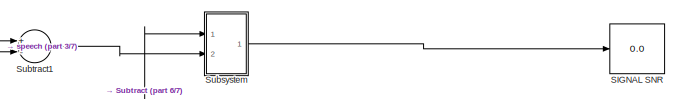
[diagram: root canvas - part 1/7, top right region]
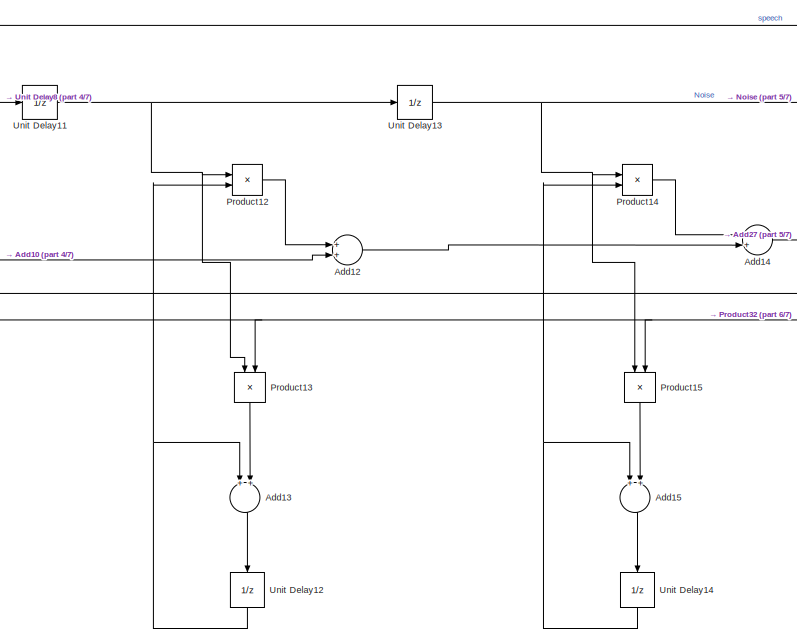
[diagram: root canvas - part 2/7, center side, full height]
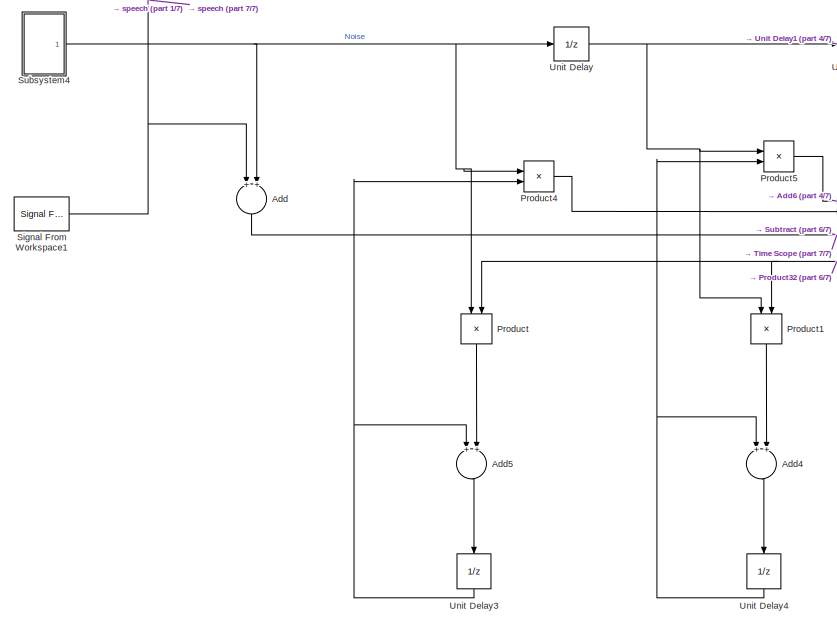
[diagram: root canvas - part 3/7, left side, full height]
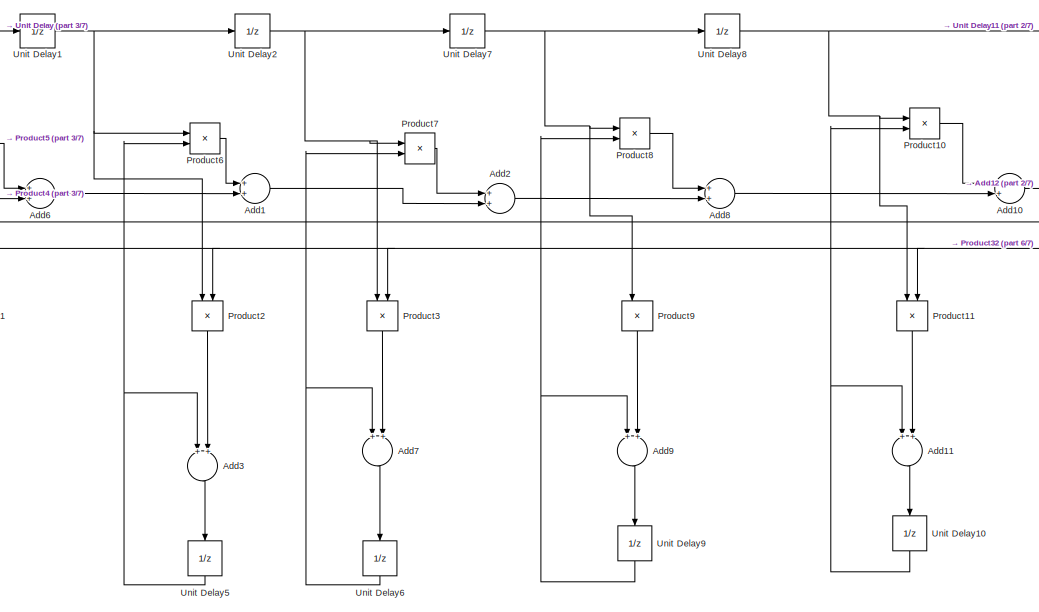
[diagram: root canvas - part 4/7, left side, full height]
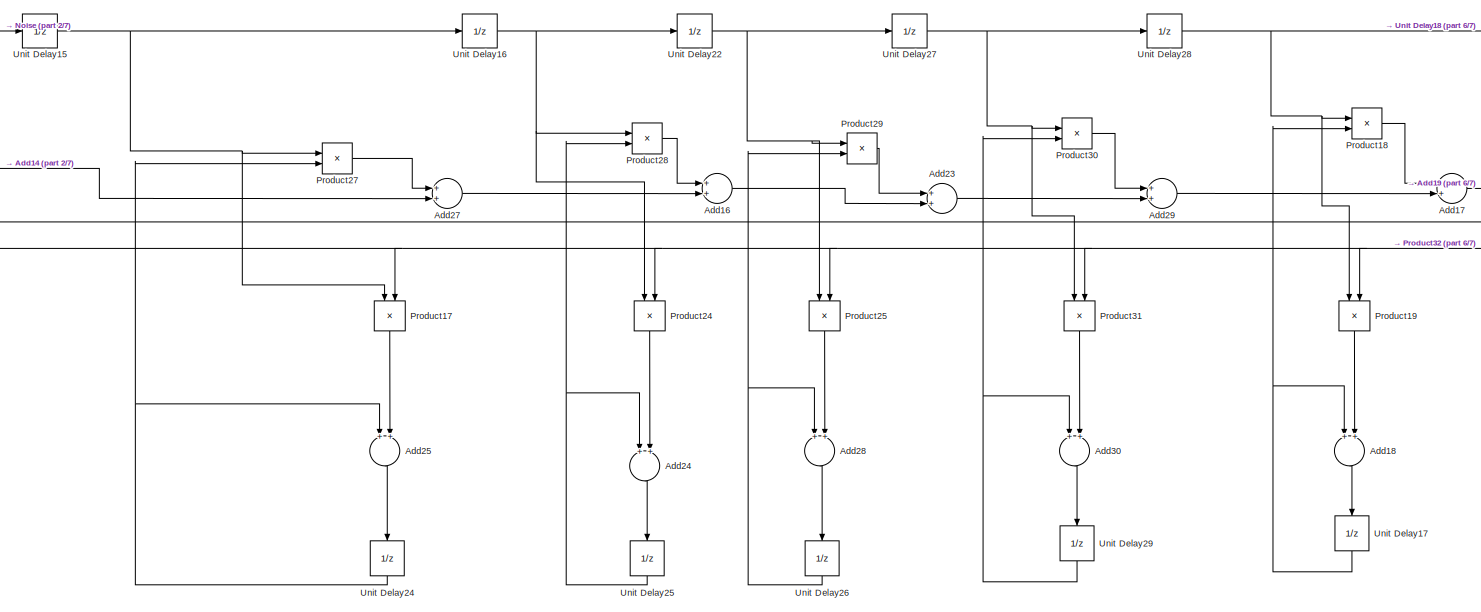
[diagram: root canvas - part 5/7, center side, full height]
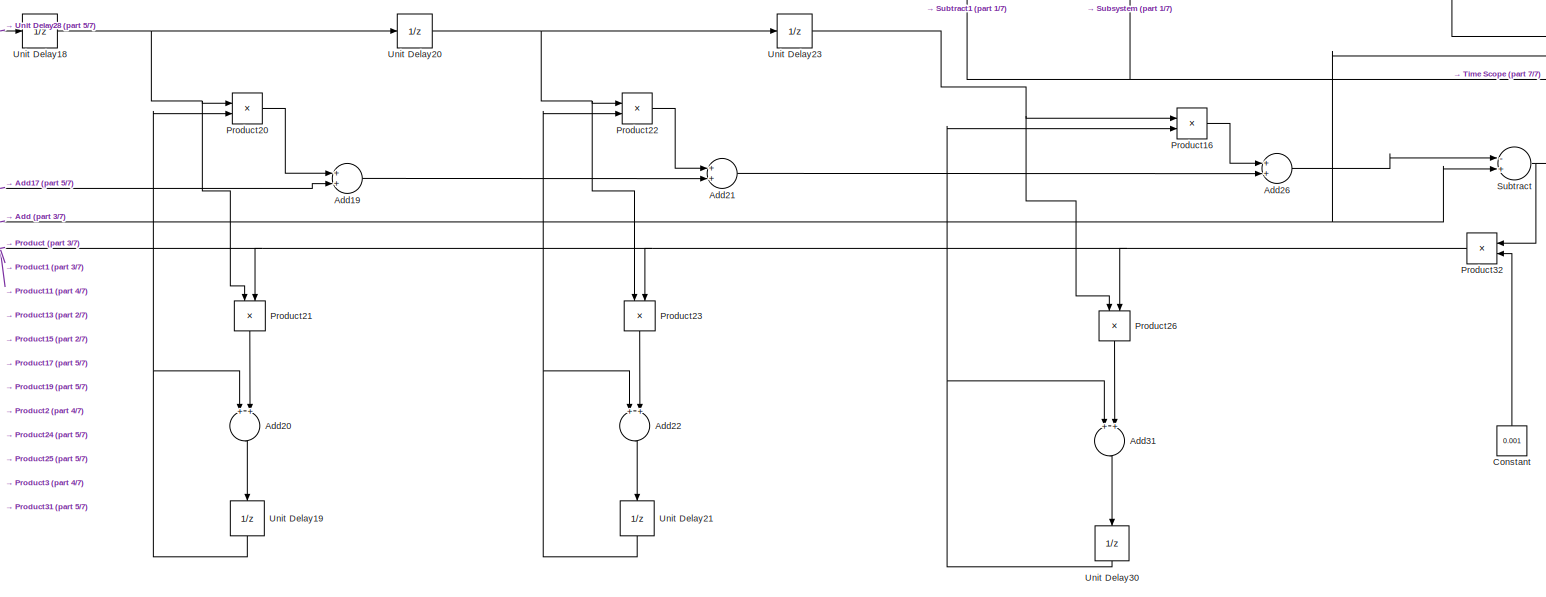
[diagram: root canvas - part 6/7, right side, full height]
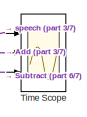
[diagram: root canvas - part 7/7, top right region]
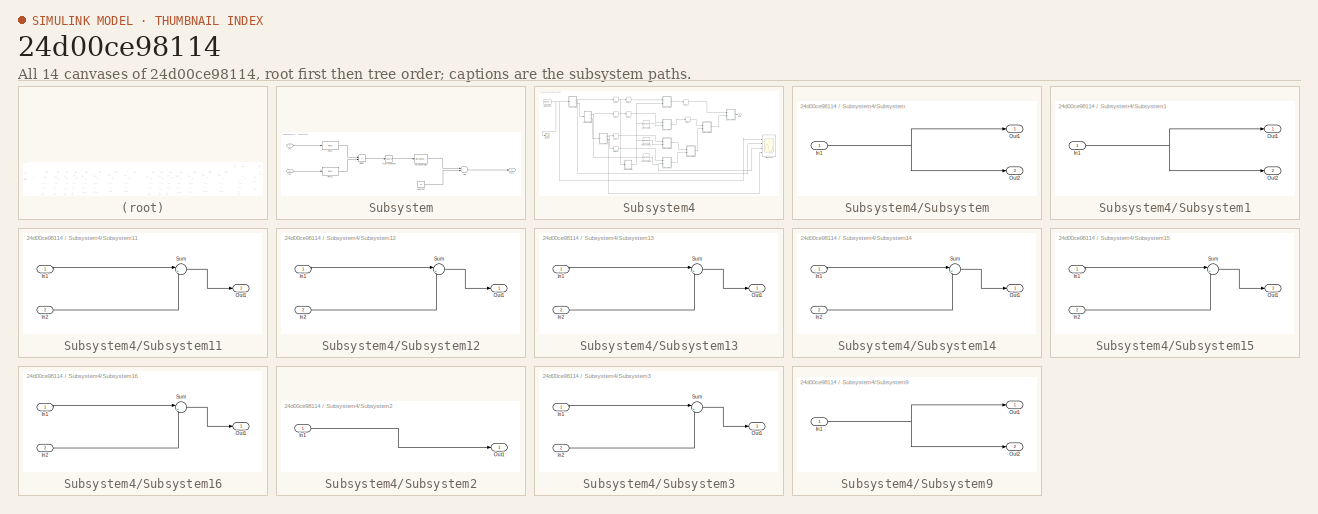
[diagram: thumbnail index - all 14 canvases of the model, root first then tree order]
MODEL slx_24d00ce98114
KIND model
CONFIG AbsTol = auto
CONFIG FixedStep = auto
CONFIG MaxStep = auto
CONFIG MinStep = auto
CONFIG RelTol = 1e-3
CONFIG SampleTimeConstraint = Unconstrained
CONFIG Solver = VariableStepAuto
CONFIG SolverMode = Auto
CONFIG SolverName = VariableStepAuto
CONFIG StartTime = 0.0
CONFIG StopTime = 4000
BLOCK [Sum] Add
  InputSameDT = off
  OutDataTypeStr = Inherit: Inherit via internal rule
  Ports = [2, 1]
  SaturateOnIntegerOverflow = off
BLOCK [Sum] Add1
  InputSameDT = off
  OutDataTypeStr = Inherit: Inherit via internal rule
  Ports = [2, 1]
  SaturateOnIntegerOverflow = off
BLOCK [Sum] Add10
  InputSameDT = off
  OutDataTypeStr = Inherit: Inherit via internal rule
  Ports = [2, 1]
  SaturateOnIntegerOverflow = off
BLOCK [Sum] Add11
  InputSameDT = off
  OutDataTypeStr = Inherit: Inherit via internal rule
  Ports = [2, 1]
  SaturateOnIntegerOverflow = off
BLOCK [Sum] Add12
  InputSameDT = off
  OutDataTypeStr = Inherit: Inherit via internal rule
  Ports = [2, 1]
  SaturateOnIntegerOverflow = off
BLOCK [Sum] Add13
  InputSameDT = off
  OutDataTypeStr = Inherit: Inherit via internal rule
  Ports = [2, 1]
  SaturateOnIntegerOverflow = off
BLOCK [Sum] Add14
  InputSameDT = off
  OutDataTypeStr = Inherit: Inherit via internal rule
  Ports = [2, 1]
  SaturateOnIntegerOverflow = off
BLOCK [Sum] Add15
  InputSameDT = off
  OutDataTypeStr = Inherit: Inherit via internal rule
  Ports = [2, 1]
  SaturateOnIntegerOverflow = off
BLOCK [Sum] Add16
  InputSameDT = off
  OutDataTypeStr = Inherit: Inherit via internal rule
  Ports = [2, 1]
  SaturateOnIntegerOverflow = off
BLOCK [Sum] Add17
  InputSameDT = off
  OutDataTypeStr = Inherit: Inherit via internal rule
  Ports = [2, 1]
  SaturateOnIntegerOverflow = off
BLOCK [Sum] Add18
  InputSameDT = off
  OutDataTypeStr = Inherit: Inherit via internal rule
  Ports = [2, 1]
  SaturateOnIntegerOverflow = off
BLOCK [Sum] Add19
  InputSameDT = off
  OutDataTypeStr = Inherit: Inherit via internal rule
  Ports = [2, 1]
  SaturateOnIntegerOverflow = off
BLOCK [Sum] Add2
  InputSameDT = off
  OutDataTypeStr = Inherit: Inherit via internal rule
  Ports = [2, 1]
  SaturateOnIntegerOverflow = off
BLOCK [Sum] Add20
  InputSameDT = off
  OutDataTypeStr = Inherit: Inherit via internal rule
  Ports = [2, 1]
  SaturateOnIntegerOverflow = off
BLOCK [Sum] Add21
  InputSameDT = off
  OutDataTypeStr = Inherit: Inherit via internal rule
  Ports = [2, 1]
  SaturateOnIntegerOverflow = off
BLOCK [Sum] Add22
  InputSameDT = off
  OutDataTypeStr = Inherit: Inherit via internal rule
  Ports = [2, 1]
  SaturateOnIntegerOverflow = off
BLOCK [Sum] Add23
  InputSameDT = off
  OutDataTypeStr = Inherit: Inherit via internal rule
  Ports = [2, 1]
  SaturateOnIntegerOverflow = off
BLOCK [Sum] Add24
  InputSameDT = off
  OutDataTypeStr = Inherit: Inherit via internal rule
  Ports = [2, 1]
  SaturateOnIntegerOverflow = off
BLOCK [Sum] Add25
  InputSameDT = off
  OutDataTypeStr = Inherit: Inherit via internal rule
  Ports = [2, 1]
  SaturateOnIntegerOverflow = off
BLOCK [Sum] Add26
  InputSameDT = off
  OutDataTypeStr = Inherit: Inherit via internal rule
  Ports = [2, 1]
  SaturateOnIntegerOverflow = off
BLOCK [Sum] Add27
  InputSameDT = off
  OutDataTypeStr = Inherit: Inherit via internal rule
  Ports = [2, 1]
  SaturateOnIntegerOverflow = off
BLOCK [Sum] Add28
  InputSameDT = off
  OutDataTypeStr = Inherit: Inherit via internal rule
  Ports = [2, 1]
  SaturateOnIntegerOverflow = off
BLOCK [Sum] Add29
  InputSameDT = off
  OutDataTypeStr = Inherit: Inherit via internal rule
  Ports = [2, 1]
  SaturateOnIntegerOverflow = off
BLOCK [Sum] Add3
  InputSameDT = off
  OutDataTypeStr = Inherit: Inherit via internal rule
  Ports = [2, 1]
  SaturateOnIntegerOverflow = off
BLOCK [Sum] Add30
  InputSameDT = off
  OutDataTypeStr = Inherit: Inherit via internal rule
  Ports = [2, 1]
  SaturateOnIntegerOverflow = off
BLOCK [Sum] Add31
  InputSameDT = off
  OutDataTypeStr = Inherit: Inherit via internal rule
  Ports = [2, 1]
  SaturateOnIntegerOverflow = off
BLOCK [Sum] Add4
  InputSameDT = off
  OutDataTypeStr = Inherit: Inherit via internal rule
  Ports = [2, 1]
  SaturateOnIntegerOverflow = off
BLOCK [Sum] Add5
  InputSameDT = off
  OutDataTypeStr = Inherit: Inherit via internal rule
  Ports = [2, 1]
  SaturateOnIntegerOverflow = off
BLOCK [Sum] Add6
  InputSameDT = off
  OutDataTypeStr = Inherit: Inherit via internal rule
  Ports = [2, 1]
  SaturateOnIntegerOverflow = off
BLOCK [Sum] Add7
  InputSameDT = off
  OutDataTypeStr = Inherit: Inherit via internal rule
  Ports = [2, 1]
  SaturateOnIntegerOverflow = off
BLOCK [Sum] Add8
  InputSameDT = off
  OutDataTypeStr = Inherit: Inherit via internal rule
  Ports = [2, 1]
  SaturateOnIntegerOverflow = off
BLOCK [Sum] Add9
  InputSameDT = off
  OutDataTypeStr = Inherit: Inherit via internal rule
  Ports = [2, 1]
  SaturateOnIntegerOverflow = off
BLOCK [Constant] Constant
  Value = 0.001
BLOCK [Product] Product
  InputSameDT = off
  OutDataTypeStr = Inherit: Inherit via internal rule
  Ports = [2, 1]
  RndMeth = Floor
  SaturateOnIntegerOverflow = off
BLOCK [Product] Product1
  InputSameDT = off
  OutDataTypeStr = Inherit: Inherit via internal rule
  Ports = [2, 1]
  RndMeth = Floor
  SaturateOnIntegerOverflow = off
BLOCK [Product] Product10
  InputSameDT = off
  OutDataTypeStr = Inherit: Inherit via internal rule
  Ports = [2, 1]
  RndMeth = Floor
  SaturateOnIntegerOverflow = off
BLOCK [Product] Product11
  InputSameDT = off
  OutDataTypeStr = Inherit: Inherit via internal rule
  Ports = [2, 1]
  RndMeth = Floor
  SaturateOnIntegerOverflow = off
BLOCK [Product] Product12
  InputSameDT = off
  OutDataTypeStr = Inherit: Inherit via internal rule
  Ports = [2, 1]
  RndMeth = Floor
  SaturateOnIntegerOverflow = off
BLOCK [Product] Product13
  InputSameDT = off
  OutDataTypeStr = Inherit: Inherit via internal rule
  Ports = [2, 1]
  RndMeth = Floor
  SaturateOnIntegerOverflow = off
BLOCK [Product] Product14
  InputSameDT = off
  OutDataTypeStr = Inherit: Inherit via internal rule
  Ports = [2, 1]
  RndMeth = Floor
  SaturateOnIntegerOverflow = off
BLOCK [Product] Product15
  InputSameDT = off
  OutDataTypeStr = Inherit: Inherit via internal rule
  Ports = [2, 1]
  RndMeth = Floor
  SaturateOnIntegerOverflow = off
BLOCK [Product] Product16
  InputSameDT = off
  OutDataTypeStr = Inherit: Inherit via internal rule
  Ports = [2, 1]
  RndMeth = Floor
  SaturateOnIntegerOverflow = off
BLOCK [Product] Product17
  InputSameDT = off
  OutDataTypeStr = Inherit: Inherit via internal rule
  Ports = [2, 1]
  RndMeth = Floor
  SaturateOnIntegerOverflow = off
BLOCK [Product] Product18
  InputSameDT = off
  OutDataTypeStr = Inherit: Inherit via internal rule
  Ports = [2, 1]
  RndMeth = Floor
  SaturateOnIntegerOverflow = off
BLOCK [Product] Product19
  InputSameDT = off
  OutDataTypeStr = Inherit: Inherit via internal rule
  Ports = [2, 1]
  RndMeth = Floor
  SaturateOnIntegerOverflow = off
BLOCK [Product] Product2
  InputSameDT = off
  OutDataTypeStr = Inherit: Inherit via internal rule
  Ports = [2, 1]
  RndMeth = Floor
  SaturateOnIntegerOverflow = off
BLOCK [Product] Product20
  InputSameDT = off
  OutDataTypeStr = Inherit: Inherit via internal rule
  Ports = [2, 1]
  RndMeth = Floor
  SaturateOnIntegerOverflow = off
BLOCK [Product] Product21
  InputSameDT = off
  OutDataTypeStr = Inherit: Inherit via internal rule
  Ports = [2, 1]
  RndMeth = Floor
  SaturateOnIntegerOverflow = off
BLOCK [Product] Product22
  InputSameDT = off
  OutDataTypeStr = Inherit: Inherit via internal rule
  Ports = [2, 1]
  RndMeth = Floor
  SaturateOnIntegerOverflow = off
BLOCK [Product] Product23
  InputSameDT = off
  OutDataTypeStr = Inherit: Inherit via internal rule
  Ports = [2, 1]
  RndMeth = Floor
  SaturateOnIntegerOverflow = off
BLOCK [Product] Product24
  InputSameDT = off
  OutDataTypeStr = Inherit: Inherit via internal rule
  Ports = [2, 1]
  RndMeth = Floor
  SaturateOnIntegerOverflow = off
BLOCK [Product] Product25
  InputSameDT = off
  OutDataTypeStr = Inherit: Inherit via internal rule
  Ports = [2, 1]
  RndMeth = Floor
  SaturateOnIntegerOverflow = off
BLOCK [Product] Product26
  InputSameDT = off
  OutDataTypeStr = Inherit: Inherit via internal rule
  Ports = [2, 1]
  RndMeth = Floor
  SaturateOnIntegerOverflow = off
BLOCK [Product] Product27
  InputSameDT = off
  OutDataTypeStr = Inherit: Inherit via internal rule
  Ports = [2, 1]
  RndMeth = Floor
  SaturateOnIntegerOverflow = off
BLOCK [Product] Product28
  InputSameDT = off
  OutDataTypeStr = Inherit: Inherit via internal rule
  Ports = [2, 1]
  RndMeth = Floor
  SaturateOnIntegerOverflow = off
BLOCK [Product] Product29
  InputSameDT = off
  OutDataTypeStr = Inherit: Inherit via internal rule
  Ports = [2, 1]
  RndMeth = Floor
  SaturateOnIntegerOverflow = off
BLOCK [Product] Product3
  InputSameDT = off
  OutDataTypeStr = Inherit: Inherit via internal rule
  Ports = [2, 1]
  RndMeth = Floor
  SaturateOnIntegerOverflow = off
BLOCK [Product] Product30
  InputSameDT = off
  OutDataTypeStr = Inherit: Inherit via internal rule
  Ports = [2, 1]
  RndMeth = Floor
  SaturateOnIntegerOverflow = off
BLOCK [Product] Product31
  InputSameDT = off
  OutDataTypeStr = Inherit: Inherit via internal rule
  Ports = [2, 1]
  RndMeth = Floor
  SaturateOnIntegerOverflow = off
BLOCK [Product] Product32
  InputSameDT = off
  OutDataTypeStr = Inherit: Inherit via internal rule
  Ports = [2, 1]
  RndMeth = Floor
  SaturateOnIntegerOverflow = off
BLOCK [Product] Product4
  InputSameDT = off
  OutDataTypeStr = Inherit: Inherit via internal rule
  Ports = [2, 1]
  RndMeth = Floor
  SaturateOnIntegerOverflow = off
BLOCK [Product] Product5
  InputSameDT = off
  OutDataTypeStr = Inherit: Inherit via internal rule
  Ports = [2, 1]
  RndMeth = Floor
  SaturateOnIntegerOverflow = off
BLOCK [Product] Product6
  InputSameDT = off
  OutDataTypeStr = Inherit: Inherit via internal rule
  Ports = [2, 1]
  RndMeth = Floor
  SaturateOnIntegerOverflow = off
BLOCK [Product] Product7
  InputSameDT = off
  OutDataTypeStr = Inherit: Inherit via internal rule
  Ports = [2, 1]
  RndMeth = Floor
  SaturateOnIntegerOverflow = off
BLOCK [Product] Product8
  InputSameDT = off
  OutDataTypeStr = Inherit: Inherit via internal rule
  Ports = [2, 1]
  RndMeth = Floor
  SaturateOnIntegerOverflow = off
BLOCK [Product] Product9
  InputSameDT = off
  OutDataTypeStr = Inherit: Inherit via internal rule
  Ports = [2, 1]
  RndMeth = Floor
  SaturateOnIntegerOverflow = off
BLOCK [Display] SIGNAL SNR 
  Decimation = 1
  Ports = [1]
BLOCK [Reference] Signal From Workspace1  REF=dspsrcs4/Signal From
Workspace
  Ports = [0, 1]
  SourceBlock = dspsrcs4/Signal From\nWorkspace
  SourceType = Signal From Workspace
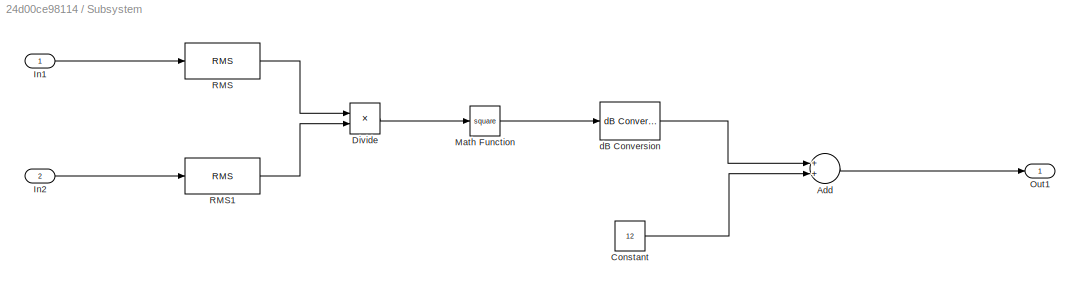
BLOCK [SubSystem] Subsystem
  Ports = [2, 1]
  RequestExecContextInheritance = off
  Variant = off
BLOCK [Sum] Subsystem/Add
  InputSameDT = off
  OutDataTypeStr = Inherit: Inherit via internal rule
  Ports = [2, 1]
  SaturateOnIntegerOverflow = off
BLOCK [Constant] Subsystem/Constant
  Value = 12
BLOCK [Product] Subsystem/Divide
  InputSameDT = off
  Inputs = */
  OutDataTypeStr = Inherit: Inherit via internal rule
  Ports = [2, 1]
  RndMeth = Floor
  SaturateOnIntegerOverflow = off
BLOCK [Inport] Subsystem/In1
  IconDisplay = Port number
  VarSizeSig = No
BLOCK [Inport] Subsystem/In2
  IconDisplay = Port number
  Port = 2
BLOCK [Math] Subsystem/Math Function
  Operator = square
  OutputSignalType = real
  Ports = [1, 1]
BLOCK [Outport] Subsystem/Out1
  IconDisplay = Port number
BLOCK [Reference] Subsystem/RMS  REF=dspstat3/RMS
  Ports = [1, 1]
  SourceBlock = dspstat3/RMS
  SourceType = RMS
  UserDataPersistent = on
BLOCK [Reference] Subsystem/RMS1  REF=dspstat3/RMS
  Ports = [1, 1]
  SourceBlock = dspstat3/RMS
  SourceType = RMS
  UserDataPersistent = on
BLOCK [Reference] Subsystem/dB Conversion  REF=dspmathops/dB Conversion
  Ports = [1, 1]
  SourceBlock = dspmathops/dB Conversion
  SourceType = dB Conversion
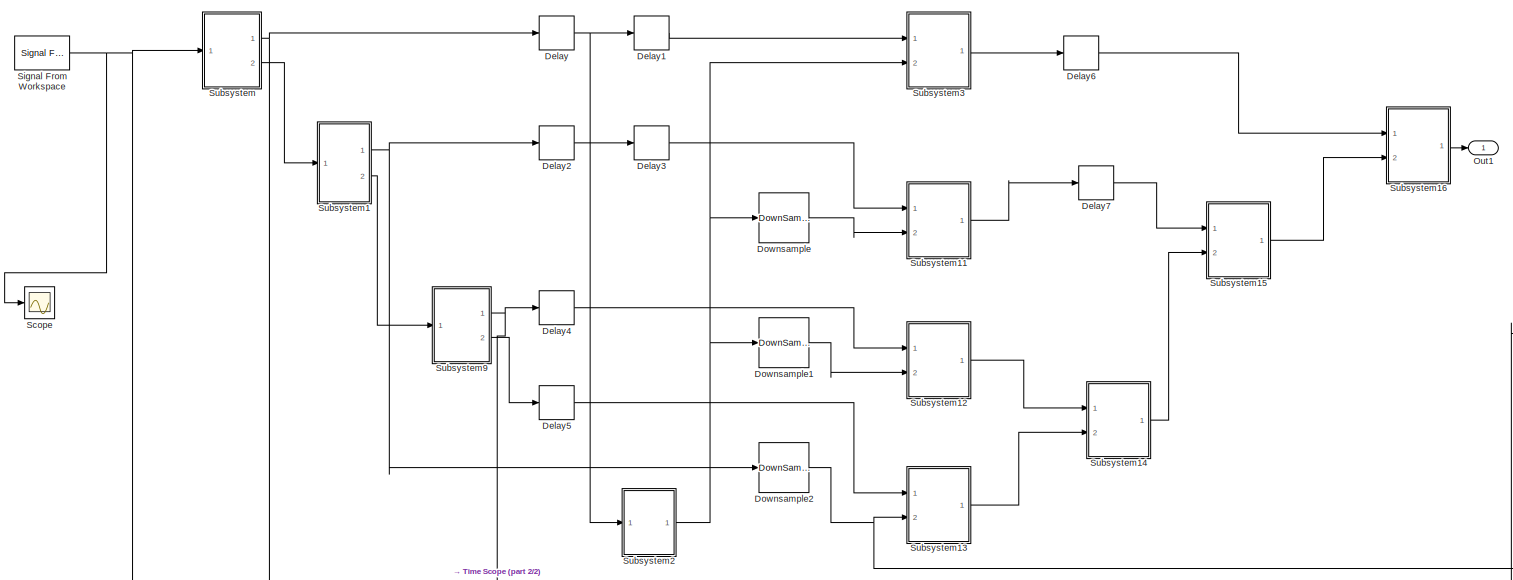
[diagram: Subsystem4 - part 1/2, most of the canvas]
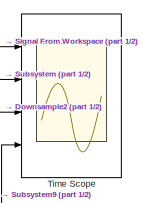
[diagram: Subsystem4 - part 2/2, middle right region]
BLOCK [SubSystem] Subsystem4
  Ports = [0, 1]
  RequestExecContextInheritance = off
  Variant = off
BLOCK [Delay] Subsystem4/Delay
  DelayLength = 24
  InitialCondition = 0
  InputPortMap = u0
  Ports = [1, 1]
BLOCK [Delay] Subsystem4/Delay1
  DelayLength = 16
  InitialCondition = 0
  InputPortMap = u0
  Ports = [1, 1]
BLOCK [Delay] Subsystem4/Delay2
  DelayLength = 8
  InitialCondition = 0
  InputPortMap = u0
  Ports = [1, 1]
BLOCK [Delay] Subsystem4/Delay3
  DelayLength = 8
  InitialCondition = 0
  InputPortMap = u0
  Ports = [1, 1]
BLOCK [Delay] Subsystem4/Delay4
  DelayLength = 4
  InitialCondition = 0
  InputPortMap = u0
  Ports = [1, 1]
BLOCK [Delay] Subsystem4/Delay5
  DelayLength = 4
  InitialCondition = 0
  InputPortMap = u0
  Ports = [1, 1]
BLOCK [Delay] Subsystem4/Delay6
  DelayLength = 24
  InitialCondition = 0
  InputPortMap = u0
  Ports = [1, 1]
BLOCK [Delay] Subsystem4/Delay7
  DelayLength = 8
  InitialCondition = 0
  InputPortMap = u0
  Ports = [1, 1]
BLOCK [DownSample] Subsystem4/Downsample
  InputProcessing = Elements as channels (sample based)
  RateOptions = Allow multirate processing
  ic = -1
BLOCK [DownSample] Subsystem4/Downsample1
  InputProcessing = Elements as channels (sample based)
  N = 4
  RateOptions = Allow multirate processing
  ic = -1
BLOCK [DownSample] Subsystem4/Downsample2
  InputProcessing = Elements as channels (sample based)
  N = 8
  ic = -1
  phase = 1
BLOCK [Outport] Subsystem4/Out1
  IconDisplay = Port number
BLOCK [Scope] Subsystem4/Scope
  Ports = [1]
  ScopeSpecificationString = Simulink.scopes.TimeScopeBlockCfg('CurrentConfiguration', extmgr.ConfigurationSet(extmgr.Configuration('Core','General UI',true),extmgr.Configuration('Core','Source UI',true),extmgr.Configuration('Sources','WiredSimulink',true,'DataLoggingLimitDataPoints',true,'DataLoggingSaveFormat','Array','DataLoggingDecimation','1','DataLoggingDecimateData',true),extmgr.Configuration('Visuals','Time Domain',tr...<+1493ch>
BLOCK [Reference] Subsystem4/Signal From Workspace  REF=dspsrcs4/Signal From
Workspace
  Ports = [0, 1]
  SourceBlock = dspsrcs4/Signal From\nWorkspace
  SourceType = Signal From Workspace
BLOCK [SubSystem] Subsystem4/Subsystem
  Ports = [1, 2]
  RequestExecContextInheritance = off
  Variant = off
BLOCK [Inport] Subsystem4/Subsystem/In1
  IconDisplay = Port number
BLOCK [Outport] Subsystem4/Subsystem/Out1
  IconDisplay = Port number
BLOCK [Outport] Subsystem4/Subsystem/Out2
  IconDisplay = Port number
  Port = 2
BLOCK [SubSystem] Subsystem4/Subsystem1
  Ports = [1, 2]
  RequestExecContextInheritance = off
  Variant = off
BLOCK [Inport] Subsystem4/Subsystem1/In1
  IconDisplay = Port number
BLOCK [Outport] Subsystem4/Subsystem1/Out1
  IconDisplay = Port number
BLOCK [Outport] Subsystem4/Subsystem1/Out2
  IconDisplay = Port number
  Port = 2
BLOCK [SubSystem] Subsystem4/Subsystem11
  Ports = [2, 1]
  RequestExecContextInheritance = off
  Variant = off
BLOCK [Inport] Subsystem4/Subsystem11/In1
  IconDisplay = Port number
BLOCK [Inport] Subsystem4/Subsystem11/In2
  IconDisplay = Port number
  Port = 2
BLOCK [Outport] Subsystem4/Subsystem11/Out1
  IconDisplay = Port number
BLOCK [Sum] Subsystem4/Subsystem11/Sum
  IconShape = round
  InputSameDT = off
  Inputs = |++
  OutDataTypeStr = Inherit: Inherit via internal rule
  Ports = [2, 1]
  SaturateOnIntegerOverflow = off
BLOCK [SubSystem] Subsystem4/Subsystem12
  Ports = [2, 1]
  RequestExecContextInheritance = off
  Variant = off
BLOCK [Inport] Subsystem4/Subsystem12/In1
  IconDisplay = Port number
BLOCK [Inport] Subsystem4/Subsystem12/In2
  IconDisplay = Port number
  Port = 2
BLOCK [Outport] Subsystem4/Subsystem12/Out1
  IconDisplay = Port number
BLOCK [Sum] Subsystem4/Subsystem12/Sum
  IconShape = round
  InputSameDT = off
  Inputs = |++
  OutDataTypeStr = Inherit: Inherit via internal rule
  Ports = [2, 1]
  SaturateOnIntegerOverflow = off
BLOCK [SubSystem] Subsystem4/Subsystem13
  Ports = [2, 1]
  RequestExecContextInheritance = off
  Variant = off
BLOCK [Inport] Subsystem4/Subsystem13/In1
  IconDisplay = Port number
BLOCK [Inport] Subsystem4/Subsystem13/In2
  IconDisplay = Port number
  Port = 2
BLOCK [Outport] Subsystem4/Subsystem13/Out1
  IconDisplay = Port number
BLOCK [Sum] Subsystem4/Subsystem13/Sum
  IconShape = round
  InputSameDT = off
  Inputs = |++
  OutDataTypeStr = Inherit: Inherit via internal rule
  Ports = [2, 1]
  SaturateOnIntegerOverflow = off
BLOCK [SubSystem] Subsystem4/Subsystem14
  Ports = [2, 1]
  RequestExecContextInheritance = off
  Variant = off
BLOCK [Inport] Subsystem4/Subsystem14/In1
  IconDisplay = Port number
BLOCK [Inport] Subsystem4/Subsystem14/In2
  IconDisplay = Port number
  Port = 2
BLOCK [Outport] Subsystem4/Subsystem14/Out1
  IconDisplay = Port number
BLOCK [Sum] Subsystem4/Subsystem14/Sum
  IconShape = round
  InputSameDT = off
  Inputs = |++
  OutDataTypeStr = Inherit: Inherit via internal rule
  Ports = [2, 1]
  SaturateOnIntegerOverflow = off
BLOCK [SubSystem] Subsystem4/Subsystem15
  Ports = [2, 1]
  RequestExecContextInheritance = off
  Variant = off
BLOCK [Inport] Subsystem4/Subsystem15/In1
  IconDisplay = Port number
BLOCK [Inport] Subsystem4/Subsystem15/In2
  IconDisplay = Port number
  Port = 2
BLOCK [Outport] Subsystem4/Subsystem15/Out1
  IconDisplay = Port number
BLOCK [Sum] Subsystem4/Subsystem15/Sum
  IconShape = round
  InputSameDT = off
  Inputs = |++
  OutDataTypeStr = Inherit: Inherit via internal rule
  Ports = [2, 1]
  SaturateOnIntegerOverflow = off
BLOCK [SubSystem] Subsystem4/Subsystem16
  Ports = [2, 1]
  RequestExecContextInheritance = off
  Variant = off
BLOCK [Inport] Subsystem4/Subsystem16/In1
  IconDisplay = Port number
BLOCK [Inport] Subsystem4/Subsystem16/In2
  IconDisplay = Port number
  Port = 2
BLOCK [Outport] Subsystem4/Subsystem16/Out1
  IconDisplay = Port number
BLOCK [Sum] Subsystem4/Subsystem16/Sum
  IconShape = round
  InputSameDT = off
  Inputs = |++
  OutDataTypeStr = Inherit: Inherit via internal rule
  Ports = [2, 1]
  SaturateOnIntegerOverflow = off
BLOCK [SubSystem] Subsystem4/Subsystem2
  Ports = [1, 1]
  RequestExecContextInheritance = off
  Variant = off
BLOCK [Inport] Subsystem4/Subsystem2/In1
  IconDisplay = Port number
BLOCK [Outport] Subsystem4/Subsystem2/Out1
  IconDisplay = Port number
BLOCK [SubSystem] Subsystem4/Subsystem3
  Ports = [2, 1]
  RequestExecContextInheritance = off
  Variant = off
BLOCK [Inport] Subsystem4/Subsystem3/In1
  IconDisplay = Port number
BLOCK [Inport] Subsystem4/Subsystem3/In2
  IconDisplay = Port number
  Port = 2
BLOCK [Outport] Subsystem4/Subsystem3/Out1
  IconDisplay = Port number
BLOCK [Sum] Subsystem4/Subsystem3/Sum
  IconShape = round
  InputSameDT = off
  Inputs = |++
  OutDataTypeStr = Inherit: Inherit via internal rule
  Ports = [2, 1]
  SaturateOnIntegerOverflow = off
BLOCK [SubSystem] Subsystem4/Subsystem9
  Ports = [1, 2]
  RequestExecContextInheritance = off
  Variant = off
BLOCK [Inport] Subsystem4/Subsystem9/In1
  IconDisplay = Port number
BLOCK [Outport] Subsystem4/Subsystem9/Out1
  IconDisplay = Port number
BLOCK [Outport] Subsystem4/Subsystem9/Out2
  IconDisplay = Port number
  Port = 2
BLOCK [Scope] Subsystem4/Time Scope
  DefaultConfigurationName = spbscopes.TimeScopeBlockCfg
  NumInputPorts = 4
  Ports = [4]
  ScopeSpecificationString = spbscopes.TimeScopeBlockCfg('CurrentConfiguration', extmgr.ConfigurationSet(extmgr.Configuration('Core','General UI',true),extmgr.Configuration('Core','Source UI',true),extmgr.Configuration('Sources','WiredSimulink',true,'DataLoggingVariableName','ScopeData1','DataLoggingLimitDataPoints',true,'DataLoggingSaveFormat','Array','DataLoggingDecimation','1','DataLoggingDecimateData',true),extmgr.Configu...<+3606ch>
  UserDataPersistent = on
BLOCK [Sum] Subtract
  InputSameDT = off
  Inputs = -+
  OutDataTypeStr = Inherit: Inherit via internal rule
  Ports = [2, 1]
  SaturateOnIntegerOverflow = off
BLOCK [Sum] Subtract1
  InputSameDT = off
  Inputs = +-
  OutDataTypeStr = Inherit: Inherit via internal rule
  Ports = [2, 1]
  SaturateOnIntegerOverflow = off
BLOCK [Scope] Time Scope
  DefaultConfigurationName = spbscopes.TimeScopeBlockCfg
  NumInputPorts = 3
  Ports = [3]
  ScopeSpecificationString = spbscopes.TimeScopeBlockCfg('CurrentConfiguration', extmgr.ConfigurationSet(extmgr.Configuration('Core','General UI',true),extmgr.Configuration('Core','Source UI',true),extmgr.Configuration('Sources','WiredSimulink',true),extmgr.Configuration('Visuals','Time Domain',true,'DisplayLayoutDimensions',[3 1],'DisplayPropertyDefaults',struct('YLabelReal','Amplitude','LegendVisibility','off','XGrid',true,...<+2715ch>
  UserDataPersistent = on
BLOCK [UnitDelay] Unit Delay
  InputProcessing = Elements as channels (sample based)
  SampleTime = -1
BLOCK [UnitDelay] Unit Delay1
  InputProcessing = Elements as channels (sample based)
  SampleTime = -1
BLOCK [UnitDelay] Unit Delay10
  InputProcessing = Elements as channels (sample based)
  SampleTime = -1
BLOCK [UnitDelay] Unit Delay11
  InputProcessing = Elements as channels (sample based)
  SampleTime = -1
BLOCK [UnitDelay] Unit Delay12
  InputProcessing = Elements as channels (sample based)
  SampleTime = -1
BLOCK [UnitDelay] Unit Delay13
  InputProcessing = Elements as channels (sample based)
  SampleTime = -1
BLOCK [UnitDelay] Unit Delay14
  InputProcessing = Elements as channels (sample based)
  SampleTime = -1
BLOCK [UnitDelay] Unit Delay15
  InputProcessing = Elements as channels (sample based)
  SampleTime = -1
BLOCK [UnitDelay] Unit Delay16
  InputProcessing = Elements as channels (sample based)
  SampleTime = -1
BLOCK [UnitDelay] Unit Delay17
  InputProcessing = Elements as channels (sample based)
  SampleTime = -1
BLOCK [UnitDelay] Unit Delay18
  InputProcessing = Elements as channels (sample based)
  SampleTime = -1
BLOCK [UnitDelay] Unit Delay19
  InputProcessing = Elements as channels (sample based)
  SampleTime = -1
BLOCK [UnitDelay] Unit Delay2
  InputProcessing = Elements as channels (sample based)
  SampleTime = -1
BLOCK [UnitDelay] Unit Delay20
  InputProcessing = Elements as channels (sample based)
  SampleTime = -1
BLOCK [UnitDelay] Unit Delay21
  InputProcessing = Elements as channels (sample based)
  SampleTime = -1
BLOCK [UnitDelay] Unit Delay22
  InputProcessing = Elements as channels (sample based)
  SampleTime = -1
BLOCK [UnitDelay] Unit Delay23
  InputProcessing = Elements as channels (sample based)
  SampleTime = -1
BLOCK [UnitDelay] Unit Delay24
  InputProcessing = Elements as channels (sample based)
  SampleTime = -1
BLOCK [UnitDelay] Unit Delay25
  InputProcessing = Elements as channels (sample based)
  SampleTime = -1
BLOCK [UnitDelay] Unit Delay26
  InputProcessing = Elements as channels (sample based)
  SampleTime = -1
BLOCK [UnitDelay] Unit Delay27
  InputProcessing = Elements as channels (sample based)
  SampleTime = -1
BLOCK [UnitDelay] Unit Delay28
  InputProcessing = Elements as channels (sample based)
  SampleTime = -1
BLOCK [UnitDelay] Unit Delay29
  InputProcessing = Elements as channels (sample based)
  SampleTime = -1
BLOCK [UnitDelay] Unit Delay3
  InputProcessing = Elements as channels (sample based)
  SampleTime = -1
BLOCK [UnitDelay] Unit Delay30
  InputProcessing = Elements as channels (sample based)
  SampleTime = -1
BLOCK [UnitDelay] Unit Delay4
  InputProcessing = Elements as channels (sample based)
  SampleTime = -1
BLOCK [UnitDelay] Unit Delay5
  InputProcessing = Elements as channels (sample based)
  SampleTime = -1
BLOCK [UnitDelay] Unit Delay6
  InputProcessing = Elements as channels (sample based)
  SampleTime = -1
BLOCK [UnitDelay] Unit Delay7
  InputProcessing = Elements as channels (sample based)
  SampleTime = -1
BLOCK [UnitDelay] Unit Delay8
  InputProcessing = Elements as channels (sample based)
  SampleTime = -1
BLOCK [UnitDelay] Unit Delay9
  InputProcessing = Elements as channels (sample based)
  SampleTime = -1
LINE Add10:1 -> Add12:2
LINE Add11:1 -> Unit Delay10:1
LINE Add12:1 -> Add14:2
LINE Add13:1 -> Unit Delay12:1
LINE Add14:1 -> Add27:2
LINE Add15:1 -> Unit Delay14:1
LINE Add16:1 -> Add23:2
LINE Add17:1 -> Add19:2
LINE Add18:1 -> Unit Delay17:1
LINE Add19:1 -> Add21:2
LINE Add1:1 -> Add2:2
LINE Add20:1 -> Unit Delay19:1
LINE Add21:1 -> Add26:2
LINE Add22:1 -> Unit Delay21:1
LINE Add23:1 -> Add29:2
LINE Add24:1 -> Unit Delay25:1
LINE Add25:1 -> Unit Delay24:1
LINE Add26:1 -> Subtract:1
LINE Add27:1 -> Add16:2
LINE Add28:1 -> Unit Delay26:1
LINE Add29:1 -> Add17:2
LINE Add2:1 -> Add8:2
LINE Add30:1 -> Unit Delay29:1
LINE Add31:1 -> Unit Delay30:1
LINE Add3:1 -> Unit Delay5:1
LINE Add4:1 -> Unit Delay4:1
LINE Add5:1 -> Unit Delay3:1
LINE Add6:1 -> Add1:2
LINE Add7:1 -> Unit Delay6:1
LINE Add8:1 -> Add10:2
LINE Add9:1 -> Unit Delay9:1
NET Add:1 -> Subtract:2, Time Scope:2
LINE Constant:1 -> Product32:2
LINE Product10:1 -> Add10:1
LINE Product11:1 -> Add11:2
LINE Product12:1 -> Add12:1
LINE Product13:1 -> Add13:2
LINE Product14:1 -> Add14:1
LINE Product15:1 -> Add15:2
LINE Product16:1 -> Add26:1
LINE Product17:1 -> Add25:2
LINE Product18:1 -> Add17:1
LINE Product19:1 -> Add18:2
LINE Product1:1 -> Add4:2
LINE Product20:1 -> Add19:1
LINE Product21:1 -> Add20:2
LINE Product22:1 -> Add21:1
LINE Product23:1 -> Add22:2
LINE Product24:1 -> Add24:2
LINE Product25:1 -> Add28:2
LINE Product26:1 -> Add31:2
LINE Product27:1 -> Add27:1
LINE Product28:1 -> Add16:1
LINE Product29:1 -> Add23:1
LINE Product2:1 -> Add3:2
LINE Product30:1 -> Add29:1
LINE Product31:1 -> Add30:2
NET Product32:1 -> Product11:2, Product13:2, Product15:2, Product17:2, Product19:2, Product1:2, Product21:2, Product23:2, Product24:2, Product25:2, Product26:2, Product2:2, Product31:2, Product3:2, Product:2
LINE Product3:1 -> Add7:2
LINE Product4:1 -> Add6:2
LINE Product5:1 -> Add6:1
LINE Product6:1 -> Add1:1
LINE Product7:1 -> Add2:1
LINE Product8:1 -> Add8:1
LINE Product9:1 -> Add9:2
LINE Product:1 -> Add5:2
NET Signal From Workspace1:1 -> Add:1, Subtract1:2, Time Scope:1
LINE Subsystem/Add:1 -> Subsystem/Out1:1
LINE Subsystem/Constant:1 -> Subsystem/Add:2
LINE Subsystem/Divide:1 -> Subsystem/Math Function:1
LINE Subsystem/In1:1 -> Subsystem/RMS:1
LINE Subsystem/In2:1 -> Subsystem/RMS1:1
LINE Subsystem/Math Function:1 -> Subsystem/dB Conversion:1
LINE Subsystem/RMS1:1 -> Subsystem/Divide:2
LINE Subsystem/RMS:1 -> Subsystem/Divide:1
LINE Subsystem/dB Conversion:1 -> Subsystem/Add:1
LINE Subsystem4/Delay1:1 -> Subsystem4/Subsystem3:1
LINE Subsystem4/Delay2:1 -> Subsystem4/Delay3:1
LINE Subsystem4/Delay3:1 -> Subsystem4/Subsystem11:1
LINE Subsystem4/Delay4:1 -> Subsystem4/Subsystem12:1
LINE Subsystem4/Delay5:1 -> Subsystem4/Subsystem13:1
LINE Subsystem4/Delay6:1 -> Subsystem4/Subsystem16:1
LINE Subsystem4/Delay7:1 -> Subsystem4/Subsystem15:1
NET Subsystem4/Delay:1 -> Subsystem4/Delay1:1, Subsystem4/Subsystem2:1
LINE Subsystem4/Downsample1:1 -> Subsystem4/Subsystem12:2
NET Subsystem4/Downsample2:1 -> Subsystem4/Subsystem13:2, Subsystem4/Time Scope:3
LINE Subsystem4/Downsample:1 -> Subsystem4/Subsystem11:2
NET Subsystem4/Signal From Workspace:1 -> Subsystem4/Scope:1, Subsystem4/Subsystem:1, Subsystem4/Time Scope:1
NET Subsystem4/Subsystem/In1:1 -> Subsystem4/Subsystem/Out1:1, Subsystem4/Subsystem/Out2:1
NET Subsystem4/Subsystem1/In1:1 -> Subsystem4/Subsystem1/Out1:1, Subsystem4/Subsystem1/Out2:1
LINE Subsystem4/Subsystem11/In1:1 -> Subsystem4/Subsystem11/Sum:1
LINE Subsystem4/Subsystem11/In2:1 -> Subsystem4/Subsystem11/Sum:2
LINE Subsystem4/Subsystem11/Sum:1 -> Subsystem4/Subsystem11/Out1:1
LINE Subsystem4/Subsystem11:1 -> Subsystem4/Delay7:1
LINE Subsystem4/Subsystem12/In1:1 -> Subsystem4/Subsystem12/Sum:1
LINE Subsystem4/Subsystem12/In2:1 -> Subsystem4/Subsystem12/Sum:2
LINE Subsystem4/Subsystem12/Sum:1 -> Subsystem4/Subsystem12/Out1:1
LINE Subsystem4/Subsystem12:1 -> Subsystem4/Subsystem14:1
LINE Subsystem4/Subsystem13/In1:1 -> Subsystem4/Subsystem13/Sum:1
LINE Subsystem4/Subsystem13/In2:1 -> Subsystem4/Subsystem13/Sum:2
LINE Subsystem4/Subsystem13/Sum:1 -> Subsystem4/Subsystem13/Out1:1
LINE Subsystem4/Subsystem13:1 -> Subsystem4/Subsystem14:2
LINE Subsystem4/Subsystem14/In1:1 -> Subsystem4/Subsystem14/Sum:1
LINE Subsystem4/Subsystem14/In2:1 -> Subsystem4/Subsystem14/Sum:2
LINE Subsystem4/Subsystem14/Sum:1 -> Subsystem4/Subsystem14/Out1:1
LINE Subsystem4/Subsystem14:1 -> Subsystem4/Subsystem15:2
LINE Subsystem4/Subsystem15/In1:1 -> Subsystem4/Subsystem15/Sum:1
LINE Subsystem4/Subsystem15/In2:1 -> Subsystem4/Subsystem15/Sum:2
LINE Subsystem4/Subsystem15/Sum:1 -> Subsystem4/Subsystem15/Out1:1
LINE Subsystem4/Subsystem15:1 -> Subsystem4/Subsystem16:2
LINE Subsystem4/Subsystem16/In1:1 -> Subsystem4/Subsystem16/Sum:1
LINE Subsystem4/Subsystem16/In2:1 -> Subsystem4/Subsystem16/Sum:2
LINE Subsystem4/Subsystem16/Sum:1 -> Subsystem4/Subsystem16/Out1:1
LINE Subsystem4/Subsystem16:1 -> Subsystem4/Out1:1
NET Subsystem4/Subsystem1:1 -> Subsystem4/Delay2:1, Subsystem4/Downsample2:1
LINE Subsystem4/Subsystem1:2 -> Subsystem4/Subsystem9:1
LINE Subsystem4/Subsystem2/In1:1 -> Subsystem4/Subsystem2/Out1:1
NET Subsystem4/Subsystem2:1 -> Subsystem4/Downsample1:1, Subsystem4/Downsample:1, Subsystem4/Subsystem3:2
LINE Subsystem4/Subsystem3/In1:1 -> Subsystem4/Subsystem3/Sum:1
LINE Subsystem4/Subsystem3/In2:1 -> Subsystem4/Subsystem3/Sum:2
LINE Subsystem4/Subsystem3/Sum:1 -> Subsystem4/Subsystem3/Out1:1
LINE Subsystem4/Subsystem3:1 -> Subsystem4/Delay6:1
NET Subsystem4/Subsystem9/In1:1 -> Subsystem4/Subsystem9/Out1:1, Subsystem4/Subsystem9/Out2:1
NET Subsystem4/Subsystem9:1 -> Subsystem4/Delay4:1, Subsystem4/Time Scope:4
LINE Subsystem4/Subsystem9:2 -> Subsystem4/Delay5:1
NET Subsystem4/Subsystem:1 -> Subsystem4/Delay:1, Subsystem4/Time Scope:2
LINE Subsystem4/Subsystem:2 -> Subsystem4/Subsystem1:1
NET Subsystem4:1 -> Add:2, Product4:1, Product:1, Unit Delay:1
LINE Subsystem:1 -> SIGNAL SNR :1
LINE Subtract1:1 -> Subsystem:2
NET Subtract:1 -> Product32:1, Subsystem:1, Subtract1:1, Time Scope:3
NET Unit Delay10:1 -> Add11:1, Product10:2
NET Unit Delay11:1 -> Product12:1, Product13:1, Unit Delay13:1
NET Unit Delay12:1 -> Add13:1, Product12:2
NET Unit Delay13:1 -> Product14:1, Product15:1, Unit Delay15:1
NET Unit Delay14:1 -> Add15:1, Product14:2
NET Unit Delay15:1 -> Product17:1, Product27:1, Unit Delay16:1
NET Unit Delay16:1 -> Product24:1, Product28:1, Unit Delay22:1
NET Unit Delay17:1 -> Add18:1, Product18:2
NET Unit Delay18:1 -> Product20:1, Product21:1, Unit Delay20:1
NET Unit Delay19:1 -> Add20:1, Product20:2
NET Unit Delay1:1 -> Product2:1, Product6:1, Unit Delay2:1
NET Unit Delay20:1 -> Product22:1, Product23:1, Unit Delay23:1
NET Unit Delay21:1 -> Add22:1, Product22:2
NET Unit Delay22:1 -> Product25:1, Product29:1, Unit Delay27:1
NET Unit Delay23:1 -> Product16:1, Product26:1
NET Unit Delay24:1 -> Add25:1, Product27:2
NET Unit Delay25:1 -> Add24:1, Product28:2
NET Unit Delay26:1 -> Add28:1, Product29:2
NET Unit Delay27:1 -> Product30:1, Product31:1, Unit Delay28:1
NET Unit Delay28:1 -> Product18:1, Product19:1, Unit Delay18:1
NET Unit Delay29:1 -> Add30:1, Product30:2
NET Unit Delay2:1 -> Product3:1, Product7:1, Unit Delay7:1
NET Unit Delay30:1 -> Add31:1, Product16:2
NET Unit Delay3:1 -> Add5:1, Product4:2
NET Unit Delay4:1 -> Add4:1, Product5:2
NET Unit Delay5:1 -> Add3:1, Product6:2
NET Unit Delay6:1 -> Add7:1, Product7:2
NET Unit Delay7:1 -> Product8:1, Product9:1, Unit Delay8:1
NET Unit Delay8:1 -> Product10:1, Product11:1, Unit Delay11:1
NET Unit Delay9:1 -> Add9:1, Product8:2
NET Unit Delay:1 -> Product1:1, Product5:1, Unit Delay1:1
note: NET lines group one-source signal fan-out (src -> all destinations, sorted); 1:1 wires keep LINE
